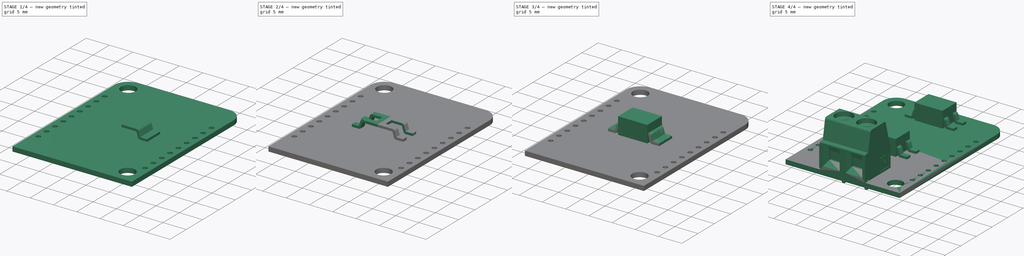
[diagram: build sequence overview — one tinted view per stage of 4, left to right]
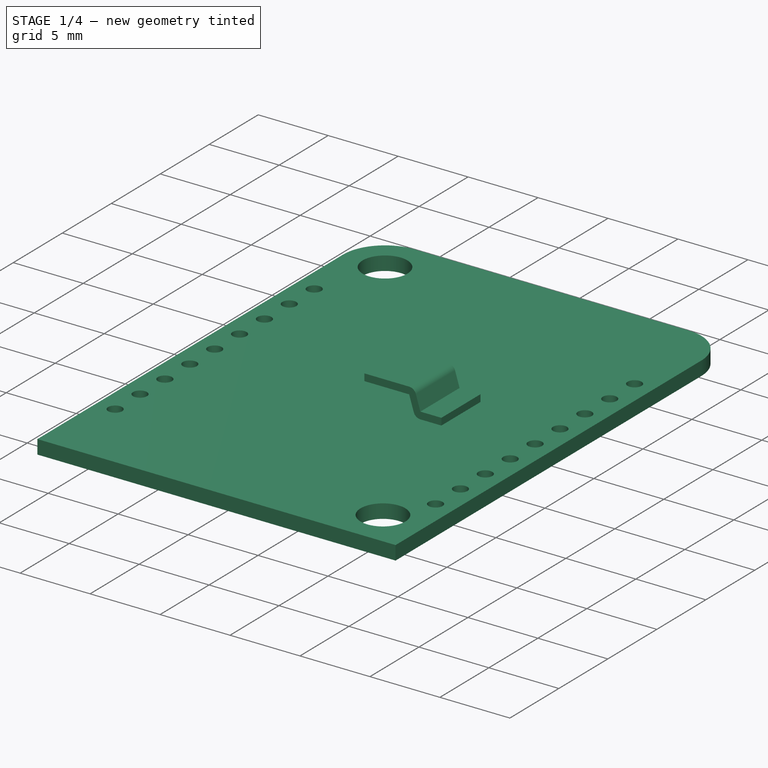
[diagram: stage 1 of 4 — iso view after this stage's code; geometry added in this stage tinted green]
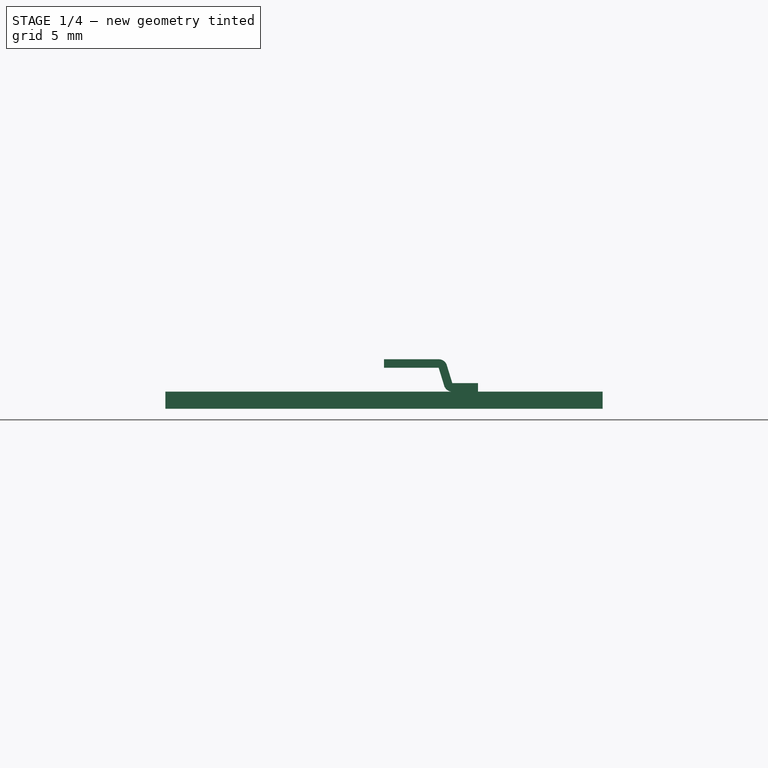
[diagram: stage 1 of 4 — front view after this stage's code; geometry added in this stage tinted green]
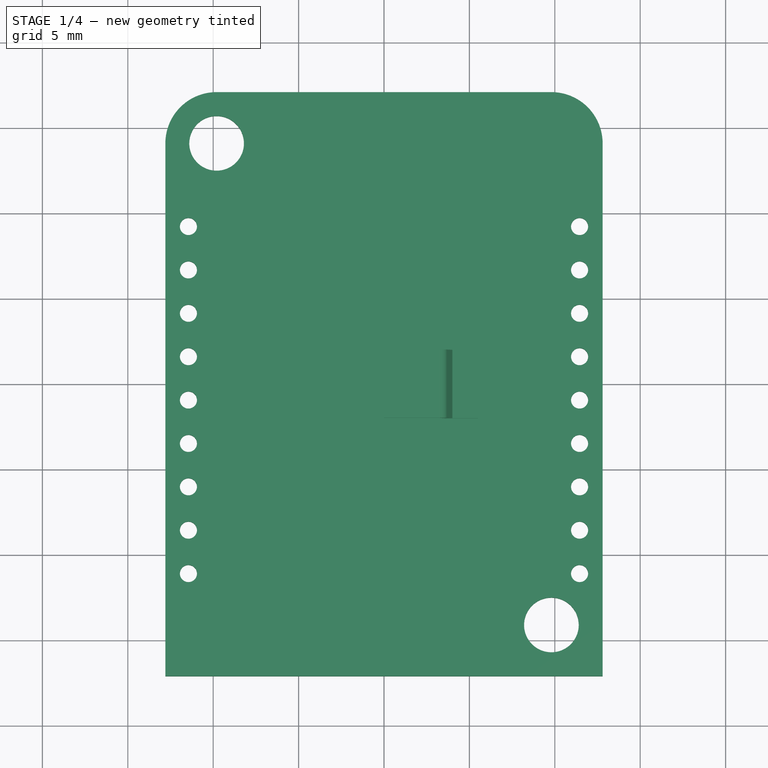
[diagram: stage 1 of 4 — top view after this stage's code; geometry added in this stage tinted green]
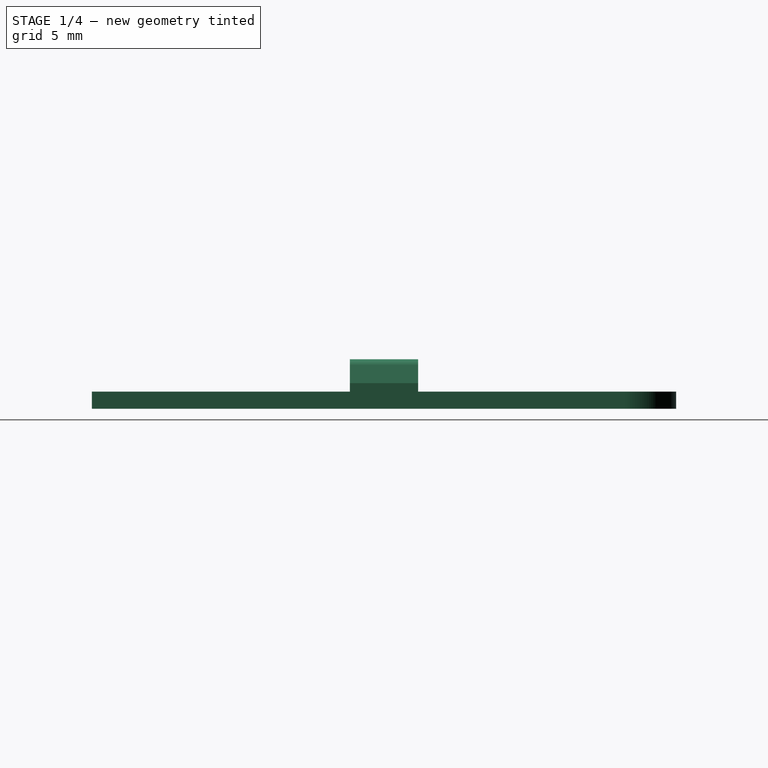
[diagram: stage 1 of 4 — right view after this stage's code; geometry added in this stage tinted green]
FCSTD DOCUMENT  (FreeCAD 0.19R24291 (Git))
Label: OpenThermAdaptor
License: All rights reserved
LicenseURL: http://en.wikipedia.org/wiki/All_rights_reserved
objects: Sketcher::SketchObject×8, PartDesign::Pad×5, PartDesign::Body×5, PartDesign::Mirrored×5, PartDesign::Pocket×3, Part::Feature×1, PartDesign::LinearPattern×1, PartDesign::MultiTransform×1, Part::Compound×1
note: 38 computed .brp shape members not serialized (recipe doc carries the construction recipe); baked Part::Feature solids carry a one-line shape summary decoded from their .brp

FEATURE [Sketcher::SketchObject] Sketch
  FullyConstrained = true
  MapMode = 5
  Support = -> [XY_Plane]
  sketch-geometry (13):
    g0: LineSegment StartX=9.8 StartY=17.1 StartZ=0 EndX=-9.8 EndY=17.1 EndZ=0
    g1: LineSegment StartX=-12.8 StartY=14.1 StartZ=0 EndX=-12.8 EndY=-17.1 EndZ=0
    g2: LineSegment StartX=-12.8 StartY=-17.1 StartZ=0 EndX=12.8 EndY=-17.1 EndZ=0
    g3: LineSegment StartX=12.8 StartY=-17.1 StartZ=0 EndX=12.8 EndY=14.1 EndZ=0
    g4: GeomPoint X=12.8 Y=17.1 Z=0
    g5: ArcOfCircle CenterX=9.8 CenterY=14.1 CenterZ=0 NormalX=0 NormalY=0 NormalZ=1 AngleXU=0 Radius=3 StartAngle=0 EndAngle=1.5708
    g6: ArcOfCircle CenterX=-9.8 CenterY=14.1 CenterZ=0 NormalX=0 NormalY=0 NormalZ=1 AngleXU=0 Radius=3 StartAngle=1.5708 EndAngle=3.14159
    g7: Circle CenterX=-9.8 CenterY=14.1 CenterZ=0 NormalX=0 NormalY=0 NormalZ=1 AngleXU=0 Radius=1.6
    g8: Circle CenterX=9.8 CenterY=-14.1 CenterZ=0 NormalX=0 NormalY=0 NormalZ=1 AngleXU=0 Radius=1.6
    g9: LineSegment StartX=-9.8 StartY=14.1 StartZ=0 EndX=9.8 EndY=14.1 EndZ=0
    g10: LineSegment StartX=9.8 StartY=14.1 StartZ=0 EndX=9.8 EndY=-14.1 EndZ=0
    g11: LineSegment StartX=9.8 StartY=-14.1 StartZ=0 EndX=-9.8 EndY=-14.1 EndZ=0
    g12: LineSegment StartX=-9.8 StartY=-14.1 StartZ=0 EndX=-9.8 EndY=14.1 EndZ=0
  constraints (29):
    c: Vertical(g1)
    c: Symmetric(g1,g3,g-2)
    c: PointOnObject(g4,g0)
    c: Symmetric(g4,g2,g-1)
    c: Symmetric(g2,g2,g-2)
    c: Tangent(g3,g5) = -1.5708
    c: Tangent(g0,g5) = -1.5708
    c: Tangent(g0,g6) = -1.5708
    c: Tangent(g1,g6) = -1.5708
    c: Symmetric(g5,g6,g-2)
    c: Coincident(g1,g2)
    c: DistanceY(g2,g0) = 34.2
    c: Vertical(g3)
    c: DistanceX(g1,g3) = 25.6
    c: Radius(g5) = 3
    c: Coincident(g7,g6)
    c: Diameter(g7) = 3.2
    c: Coincident(g9,g10)
    c: Coincident(g10,g11)
    c: Coincident(g11,g12)
    c: Coincident(g12,g9)
    c: Horizontal(g11)
    c: Vertical(g12)
    c: Coincident(g9,g6)
    c: Coincident(g10,g8)
    c: Symmetric(g6,g9,g-2)
    c: Symmetric(g5,g8,g-1)
    c: Equal(g8,g7)
    c: DistanceY(g1,g-1) = 17.1
FEATURE [PartDesign::Pad] Pad
  Direction = (1,1,1)
  Length = 1
  Length2 = 100
  Profile = -> Sketch
  Reversed = true
  Type = 0
FEATURE [PartDesign::Body] Body007  label="BodyDevice002"
  Group = -> [Sketch012,Pad011]
  Origin = -> Origin008
  Placement = pos=(0,29.75,0) rot=(0,0,1;0rad)
  Tip = -> Pad011
FEATURE [Sketcher::SketchObject] Sketch013
  FullyConstrained = false
  MapMode = 5
  Support = -> [XY_Plane007]
  sketch-geometry (4):
    g0: LineSegment StartX=6 StartY=0.9 StartZ=0 EndX=1 EndY=0.9 EndZ=0
    g1: LineSegment StartX=1 StartY=0.9 StartZ=0 EndX=1 EndY=-0.9 EndZ=0
    g2: LineSegment StartX=1 StartY=-0.9 StartZ=0 EndX=6 EndY=-0.9 EndZ=0
    g3: LineSegment StartX=6 StartY=-0.9 StartZ=0 EndX=6 EndY=0.9 EndZ=0
  constraints (11):
    c: Coincident(g0,g1)
    c: Coincident(g1,g2)
    c: Coincident(g2,g3)
    c: Coincident(g3,g0)
    c: Horizontal(g0)
    c: Horizontal(g2)
    c: Vertical(g1)
    c: Symmetric(g0,g2,g-1)
    c: DistanceY(g3,g3) = 1.8
    c: DistanceX(g0) = 6
    c: DistanceX(g0) = 1
FEATURE [Sketcher::SketchObject] Sketch014
  FullyConstrained = false
  MapMode = 5
  Placement = pos=(0,0,0) rot=(1,0,0;1.5708rad)
  Support = -> [XZ_Plane008]
  sketch-geometry (10):
    g0: LineSegment StartX=0 StartY=1.9 StartZ=0 EndX=3.2 EndY=1.9 EndZ=0
    g1: LineSegment StartX=3.2 StartY=1.4 StartZ=0 EndX=0 EndY=1.4 EndZ=0
    g2: LineSegment StartX=0 StartY=1.4 StartZ=0 EndX=0 EndY=1.9 EndZ=0
    g3: LineSegment StartX=4 StartY=0.5 StartZ=0 EndX=5.5 EndY=0.5 EndZ=0
    g4: LineSegment StartX=5.5 StartY=0.5 StartZ=0 EndX=5.5 EndY=0 EndZ=0
    g5: LineSegment StartX=5.5 StartY=0 StartZ=0 EndX=4 EndY=0 EndZ=0
    g6: LineSegment StartX=3.2 StartY=1.4 StartZ=0 EndX=3.5221 EndY=0.352981 EndZ=0
    g7: LineSegment StartX=4 StartY=0.5 StartZ=0 EndX=3.6779 EndY=1.54702 EndZ=0
    g8: ArcOfCircle CenterX=3.2 CenterY=1.4 CenterZ=0 NormalX=0 NormalY=0 NormalZ=1 AngleXU=0 Radius=0.5 StartAngle=0.29845 EndAngle=1.5708
    g9: ArcOfCircle CenterX=4 CenterY=0.5 CenterZ=0 NormalX=0 NormalY=0 NormalZ=1 AngleXU=0 Radius=0.5 StartAngle=3.44004 EndAngle=4.71239
  constraints (26):
    c: Coincident(g1,g2)
    c: Coincident(g2,g0)
    c: Horizontal(g0)
    c: Horizontal(g1)
    c: Vertical(g2)
    c: PointOnObject(g0,g-2)
    c: Coincident(g3,g4)
    c: Coincident(g4,g5)
    c: Horizontal(g3)
    c: Horizontal(g5)
    c: Vertical(g4)
    c: PointOnObject(g4,g-1)
    c: Tangent(g0,g8) = 1.5708
    c: Tangent(g7,g8) = -1.5708
    c: Tangent(g6,g9) = -1.5708
    c: Tangent(g5,g9) = 1.5708
    c: Coincident(g3,g7)
    c: Coincident(g3,g9)
    c: Coincident(g1,g6)
    c: Coincident(g1,g8)
    c: Parallel(g6,g7)
    c: DistanceX(g3) = 5.5
    c: DistanceY(g4,g4) = 0.5
    c: DistanceX(g1) = 3.2
    c: DistanceY(g1) = 1.4
    c: DistanceX(g1,g3) = 0.8
FEATURE [PartDesign::Pad] Pad010
  Direction = (1,1,1)
  Length = 4
  Length2 = 100
  Midplane = true
  Placement = pos=(0,0,0) rot=(1,0,0;1.5708rad)
  Profile = -> Sketch014
  Type = 0
FEATURE [PartDesign::Body] Body008  label="PinsDevice002"
  Group = -> [Sketch014,Pad010,Mirrored002,Sketch013,Pocket001,Mirrored003]
  Origin = -> Origin007
  Placement = pos=(0,29.75,0) rot=(0,0,1;0rad)
  Tip = -> Mirrored003
FEATURE [Sketcher::SketchObject] Sketch015
  FullyConstrained = false
  MapMode = 5
  Support = -> [XY_Plane]
  sketch-geometry (1):
    g0: Circle CenterX=11.45 CenterY=-11.09 CenterZ=0 NormalX=0 NormalY=0 NormalZ=1 AngleXU=0 Radius=0.5
  constraints (3):
    c: DistanceX(g-1,g0) = 11.45
    c: DistanceY(g0,g-1) = 11.09
    c: Diameter(g0) = 1
FEATURE [PartDesign::Pocket] Pocket002
  BaseFeature = -> Pad
  Length = 5
  Length2 = 100
  Midplane = true
  Profile = -> Sketch015
  Type = 1
FEATURE [PartDesign::LinearPattern] LinearPattern
  Direction = -> Y_Axis
  Length = 20.32
  Occurrences = 9
FEATURE [PartDesign::Mirrored] Mirrored004
  MirrorPlane = -> YZ_Plane
FEATURE [PartDesign::MultiTransform] MultiTransform
  BaseFeature = -> Pocket002
  Originals = -> [Pocket002]
  Transformations = -> [LinearPattern,Mirrored004]
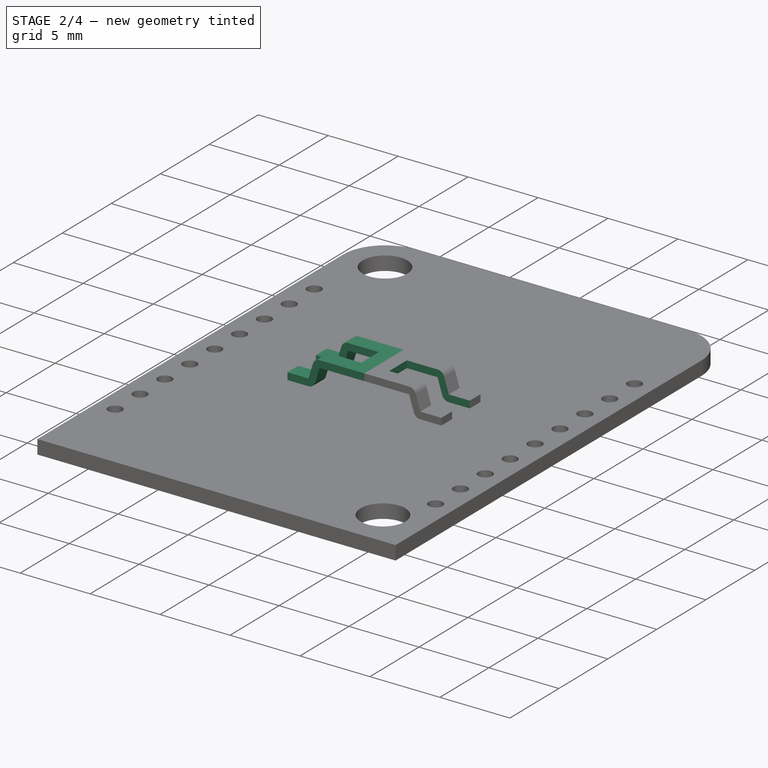
[diagram: stage 2 of 4 — iso view after this stage's code; geometry added in this stage tinted green]
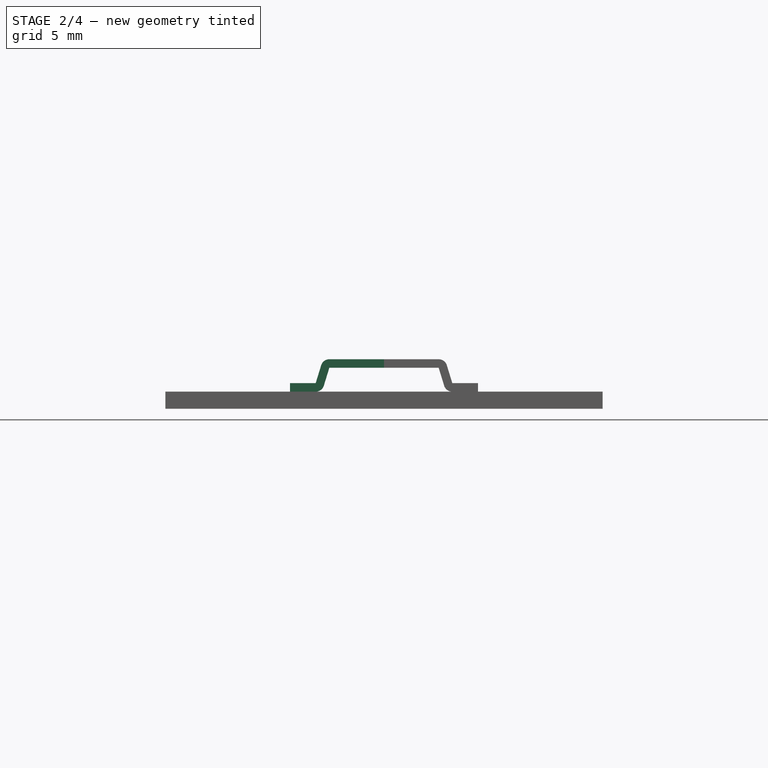
[diagram: stage 2 of 4 — front view after this stage's code; geometry added in this stage tinted green]
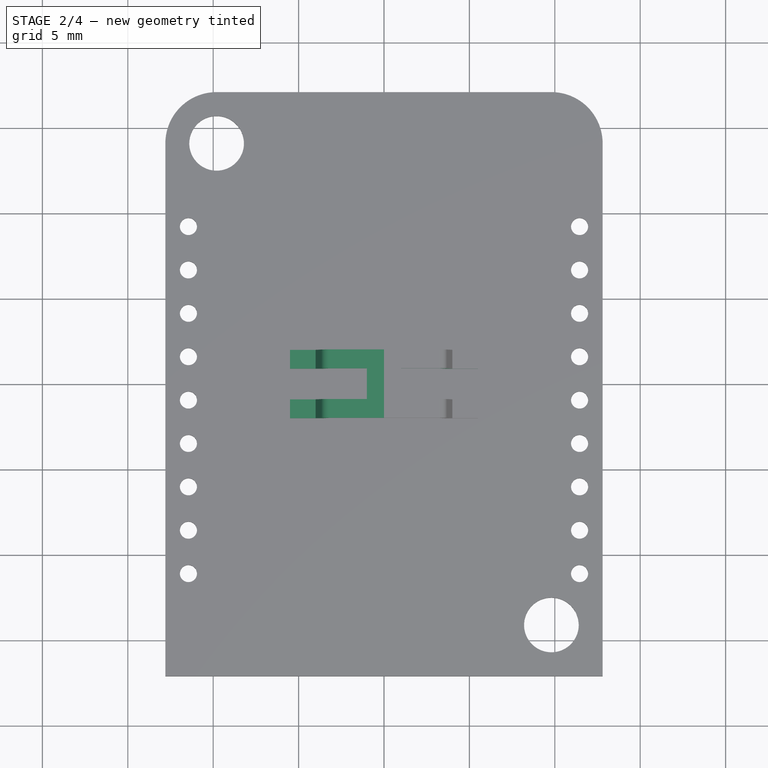
[diagram: stage 2 of 4 — top view after this stage's code; geometry added in this stage tinted green]
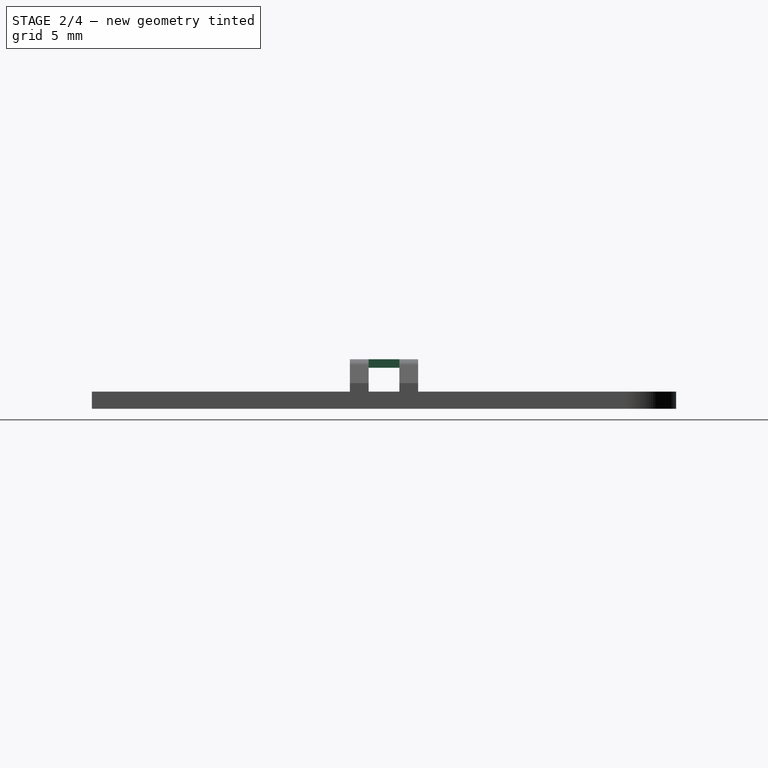
[diagram: stage 2 of 4 — right view after this stage's code; geometry added in this stage tinted green]
FEATURE [PartDesign::Mirrored] Mirrored002
  BaseFeature = -> Pad010
  MirrorPlane = -> YZ_Plane008
  Originals = -> [Pad010]
  Placement = pos=(0,0,0) rot=(1,0,0;1.5708rad)
FEATURE [PartDesign::Pocket] Pocket001
  BaseFeature = -> Mirrored002
  Length = 5
  Length2 = 100
  Midplane = true
  Placement = pos=(0,0,0) rot=(1,0,0;1.5708rad)
  Profile = -> Sketch013
  Type = 1
FEATURE [PartDesign::Mirrored] Mirrored003
  BaseFeature = -> Pocket001
  MirrorPlane = -> YZ_Plane008
  Originals = -> [Pocket001]
  Placement = pos=(0,0,0) rot=(1,0,0;1.5708rad)
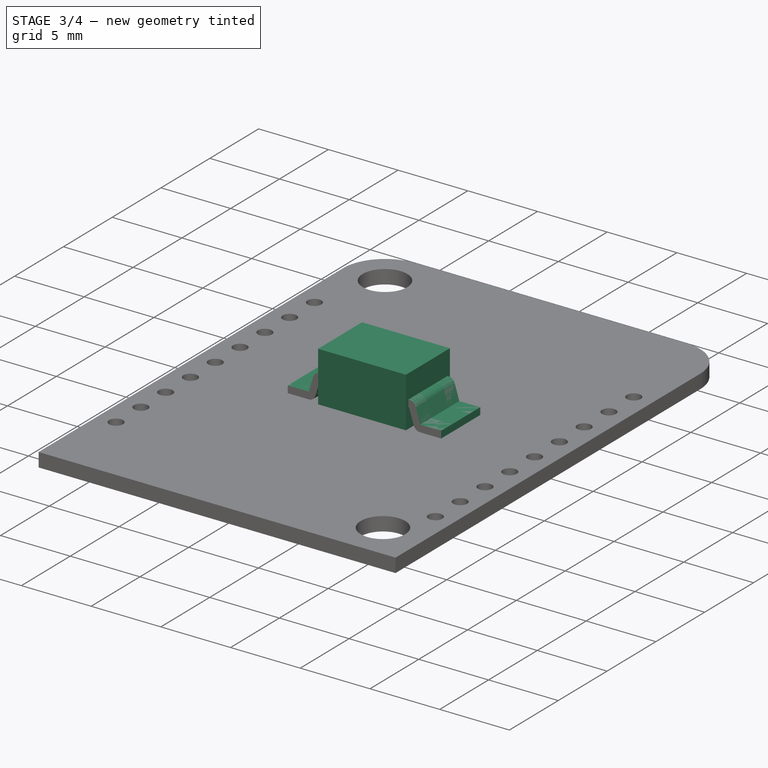
[diagram: stage 3 of 4 — iso view after this stage's code; geometry added in this stage tinted green]
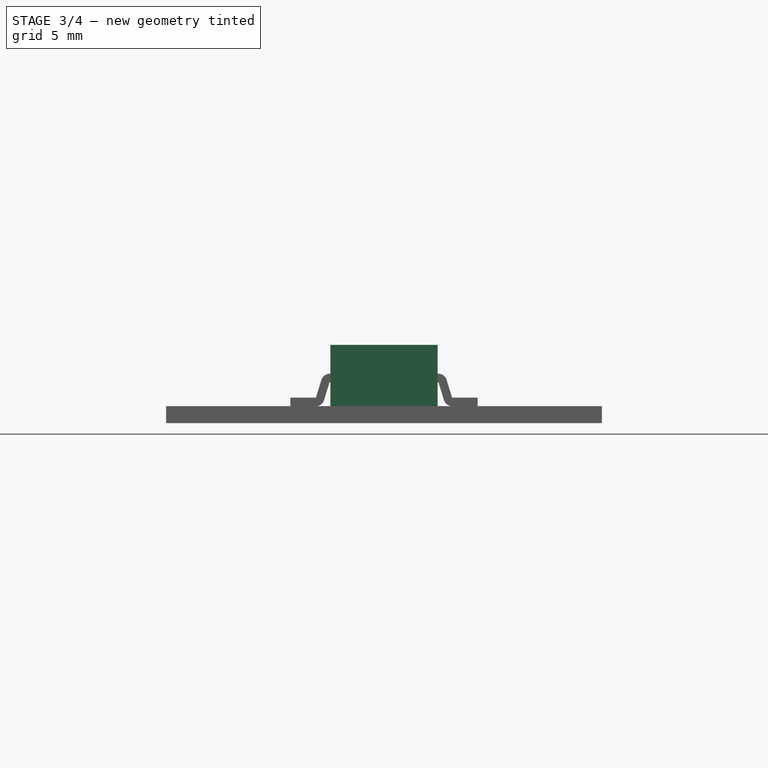
[diagram: stage 3 of 4 — front view after this stage's code; geometry added in this stage tinted green]
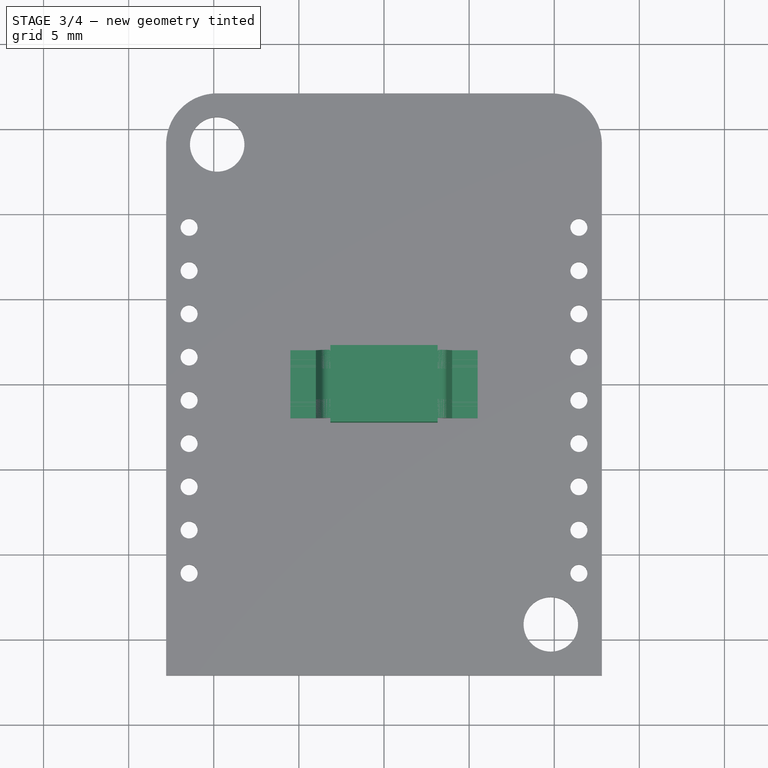
[diagram: stage 3 of 4 — top view after this stage's code; geometry added in this stage tinted green]
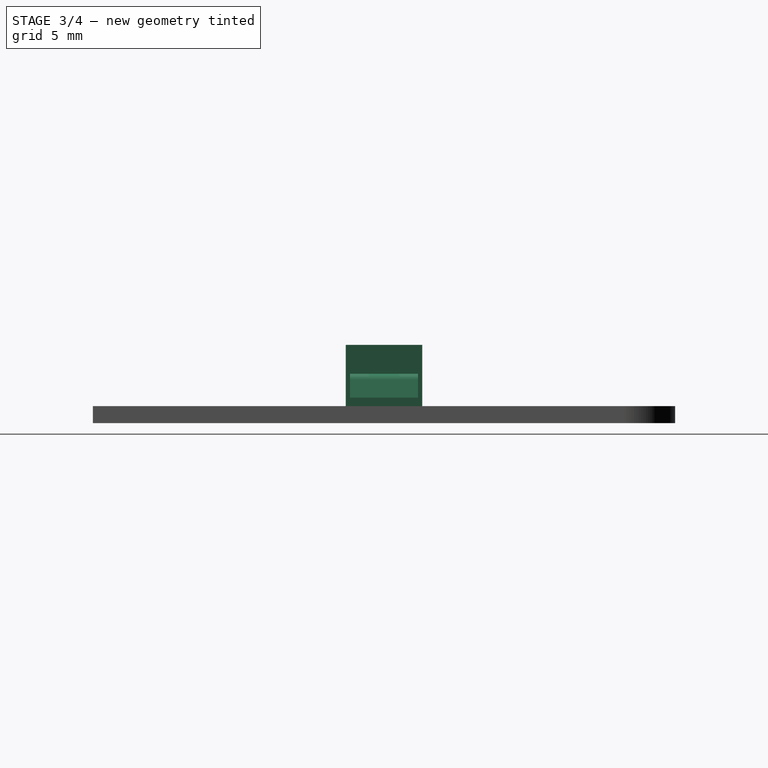
[diagram: stage 3 of 4 — right view after this stage's code; geometry added in this stage tinted green]
FEATURE [PartDesign::Body] Body001  label="BodyDevice1"
  Group = -> [Sketch001,Pad001]
  Origin = -> Origin001
  Placement = pos=(0,14.75,0) rot=(0,0,1;0rad)
  Tip = -> Pad001
FEATURE [Sketcher::SketchObject] Sketch010
  FullyConstrained = false
  MapMode = 5
  Placement = pos=(0,0,0) rot=(1,0,0;1.5708rad)
  Support = -> [XZ_Plane002]
  sketch-geometry (10):
    g0: LineSegment StartX=0 StartY=1.9 StartZ=0 EndX=3.2 EndY=1.9 EndZ=0
    g1: LineSegment StartX=3.2 StartY=1.4 StartZ=0 EndX=0 EndY=1.4 EndZ=0
    g2: LineSegment StartX=0 StartY=1.4 StartZ=0 EndX=0 EndY=1.9 EndZ=0
    g3: LineSegment StartX=4 StartY=0.5 StartZ=0 EndX=5.5 EndY=0.5 EndZ=0
    g4: LineSegment StartX=5.5 StartY=0.5 StartZ=0 EndX=5.5 EndY=0 EndZ=0
    g5: LineSegment StartX=5.5 StartY=0 StartZ=0 EndX=4 EndY=0 EndZ=0
    g6: LineSegment StartX=3.2 StartY=1.4 StartZ=0 EndX=3.5221 EndY=0.352981 EndZ=0
    g7: LineSegment StartX=4 StartY=0.5 StartZ=0 EndX=3.6779 EndY=1.54702 EndZ=0
    g8: ArcOfCircle CenterX=3.2 CenterY=1.4 CenterZ=0 NormalX=0 NormalY=0 NormalZ=1 AngleXU=0 Radius=0.5 StartAngle=0.29845 EndAngle=1.5708
    g9: ArcOfCircle CenterX=4 CenterY=0.5 CenterZ=0 NormalX=0 NormalY=0 NormalZ=1 AngleXU=0 Radius=0.5 StartAngle=3.44004 EndAngle=4.71239
  constraints (26):
    c: Coincident(g1,g2)
    c: Coincident(g2,g0)
    c: Horizontal(g0)
    c: Horizontal(g1)
    c: Vertical(g2)
    c: PointOnObject(g0,g-2)
    c: Coincident(g3,g4)
    c: Coincident(g4,g5)
    c: Horizontal(g3)
    c: Horizontal(g5)
    c: Vertical(g4)
    c: PointOnObject(g4,g-1)
    c: Tangent(g0,g8) = 1.5708
    c: Tangent(g7,g8) = -1.5708
    c: Tangent(g6,g9) = -1.5708
    c: Tangent(g5,g9) = 1.5708
    c: Coincident(g3,g7)
    c: Coincident(g3,g9)
    c: Coincident(g1,g6)
    c: Coincident(g1,g8)
    c: Parallel(g6,g7)
    c: DistanceX(g3) = 5.5
    c: DistanceY(g4,g4) = 0.5
    c: DistanceX(g1) = 3.2
    c: DistanceY(g1) = 1.4
    c: DistanceX(g1,g3) = 0.8
FEATURE [PartDesign::Pad] Pad009
  Direction = (1,1,1)
  Length = 4
  Length2 = 100
  Midplane = true
  Placement = pos=(0,0,0) rot=(1,0,0;1.5708rad)
  Profile = -> Sketch010
  Type = 0
FEATURE [PartDesign::Mirrored] Mirrored
  BaseFeature = -> Pad009
  MirrorPlane = -> YZ_Plane002
  Originals = -> [Pad009]
  Placement = pos=(0,0,0) rot=(1,0,0;1.5708rad)
FEATURE [PartDesign::Body] Body002  label="PinsDevice1"
  Group = -> [Sketch010,Pad009,Mirrored,Sketch011,Pocket,Mirrored001]
  Origin = -> Origin002
  Placement = pos=(0,14.75,0) rot=(0,0,1;0rad)
  Tip = -> Mirrored001
FEATURE [Sketcher::SketchObject] Sketch012
  FullyConstrained = false
  MapMode = 5
  Placement = pos=(0,0,0) rot=(0.57735,0.57735,0.57735;2.0944rad)
  Support = -> [YZ_Plane007]
  sketch-geometry (4):
    g0: LineSegment StartX=-2.25 StartY=3.6 StartZ=0 EndX=2.25 EndY=3.6 EndZ=0
    g1: LineSegment StartX=2.25 StartY=3.6 StartZ=0 EndX=2.25 EndY=0 EndZ=0
    g2: LineSegment StartX=2.25 StartY=0 StartZ=0 EndX=-2.25 EndY=0 EndZ=0
    g3: LineSegment StartX=-2.25 StartY=0 StartZ=0 EndX=-2.25 EndY=3.6 EndZ=0
  constraints (11):
    c: Coincident(g0,g1)
    c: Coincident(g1,g2)
    c: Coincident(g2,g3)
    c: Coincident(g3,g0)
    c: Horizontal(g2)
    c: Vertical(g1)
    c: Vertical(g3)
    c: DistanceX(g0,g0) = 4.5
    c: DistanceY(g1,g1) = 3.6
    c: PointOnObject(g1,g-1)
    c: Symmetric(g0,g0,g-2)
FEATURE [PartDesign::Pad] Pad011
  Direction = (1,1,1)
  Length = 6.3
  Length2 = 100
  Midplane = true
  Placement = pos=(0,0,0) rot=(0.57735,0.57735,0.57735;2.0944rad)
  Profile = -> Sketch012
  Type = 0
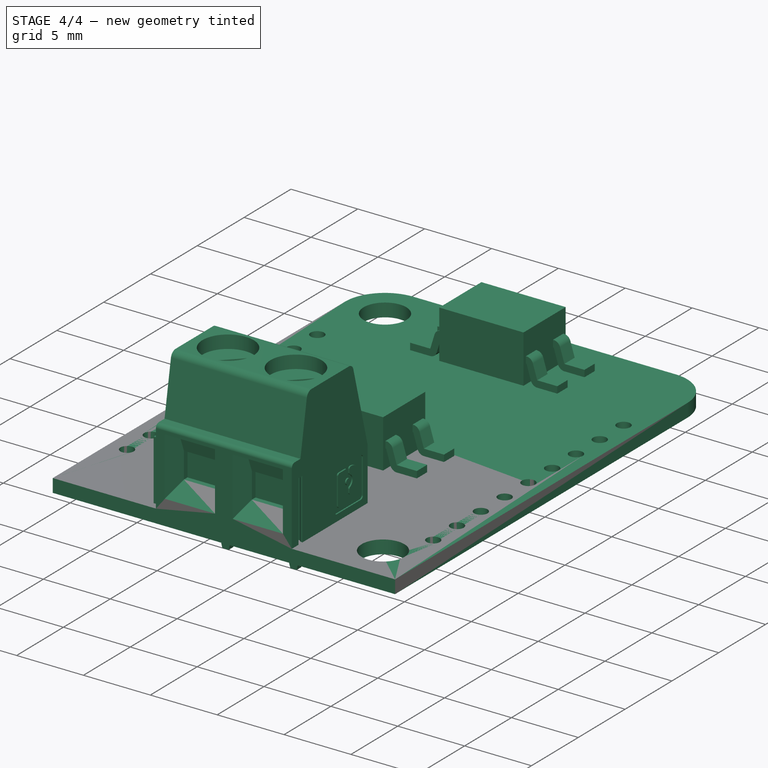
[diagram: stage 4 of 4 — iso view after this stage's code; geometry added in this stage tinted green]
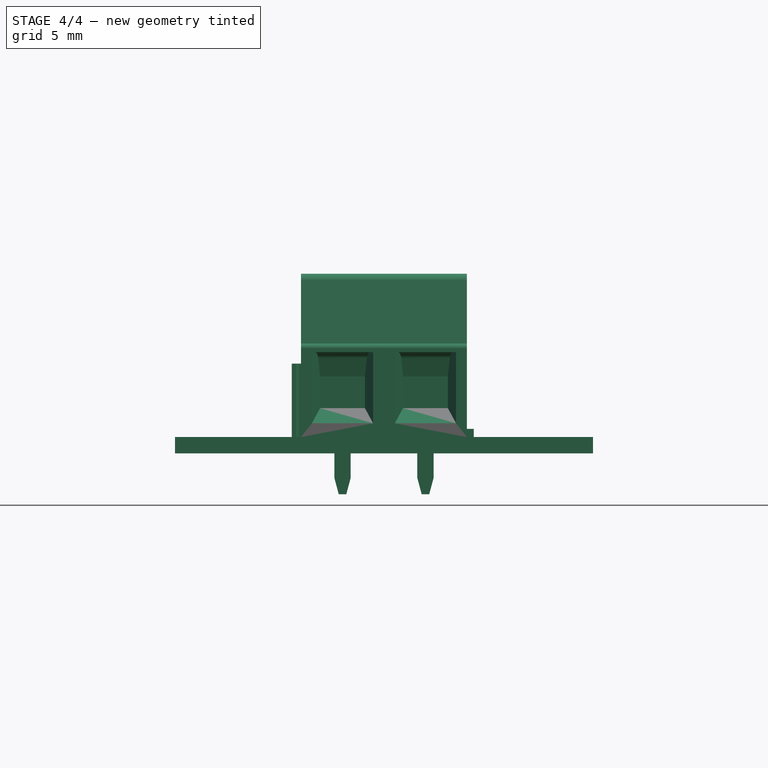
[diagram: stage 4 of 4 — front view after this stage's code; geometry added in this stage tinted green]
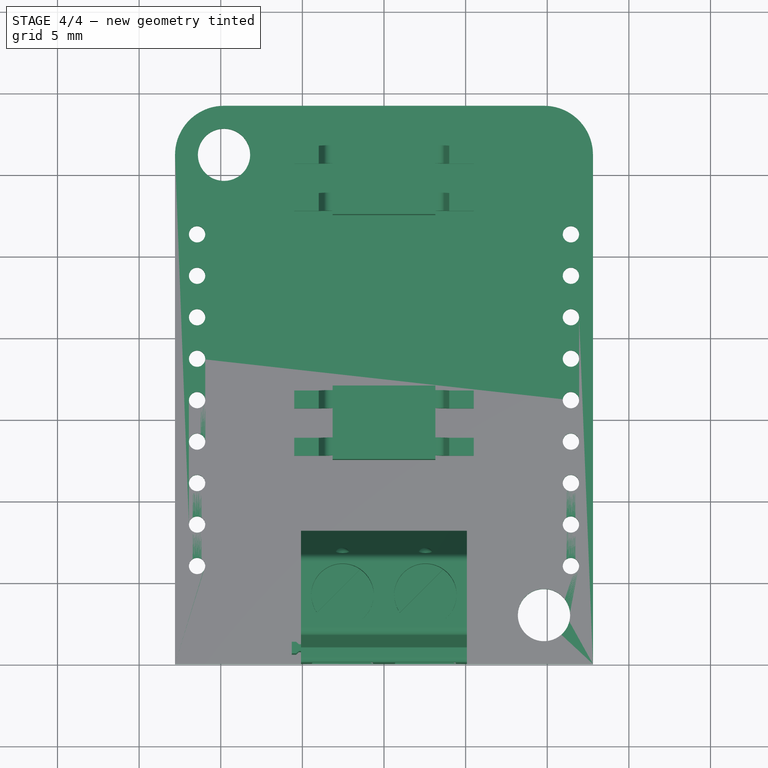
[diagram: stage 4 of 4 — top view after this stage's code; geometry added in this stage tinted green]
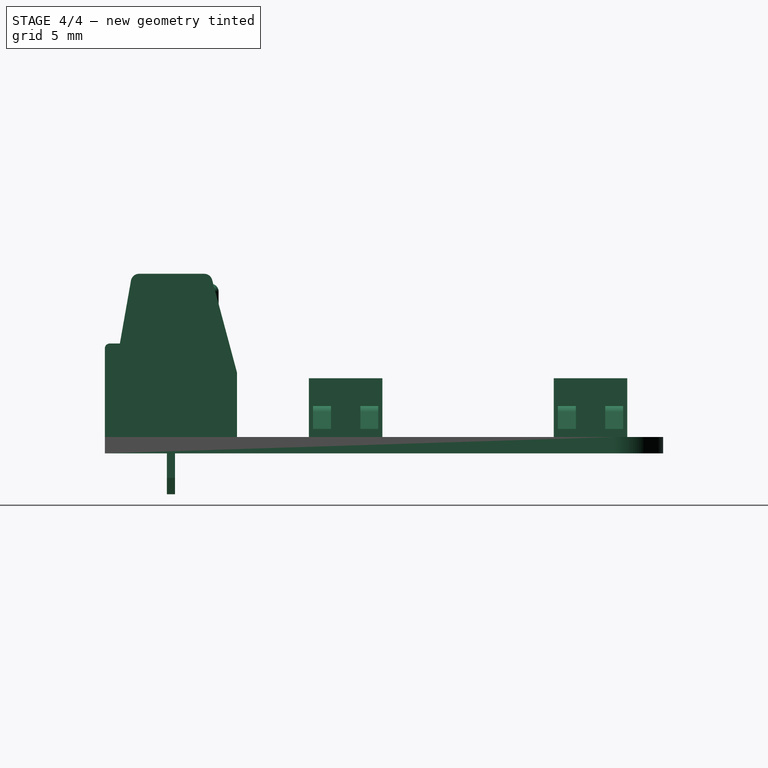
[diagram: stage 4 of 4 — right view after this stage's code; geometry added in this stage tinted green]
FEATURE [Part::Feature] Part__Feature002  label="Phonix2Pins"
  Placement = pos=(2.53914,39.9011,-15.51) rot=(0.57735,0.57735,0.57735;2.0944rad)
  shape: bbox 10.73 x 8.1 x 13.5 mm, 169 faces (baked)
FEATURE [Sketcher::SketchObject] Sketch001
  FullyConstrained = false
  MapMode = 5
  Placement = pos=(0,0,0) rot=(0.57735,0.57735,0.57735;2.0944rad)
  Support = -> [YZ_Plane001]
  sketch-geometry (4):
    g0: LineSegment StartX=-2.25 StartY=3.6 StartZ=0 EndX=2.25 EndY=3.6 EndZ=0
    g1: LineSegment StartX=2.25 StartY=3.6 StartZ=0 EndX=2.25 EndY=0 EndZ=0
    g2: LineSegment StartX=2.25 StartY=0 StartZ=0 EndX=-2.25 EndY=0 EndZ=0
    g3: LineSegment StartX=-2.25 StartY=0 StartZ=0 EndX=-2.25 EndY=3.6 EndZ=0
  constraints (11):
    c: Coincident(g0,g1)
    c: Coincident(g1,g2)
    c: Coincident(g2,g3)
    c: Coincident(g3,g0)
    c: Horizontal(g2)
    c: Vertical(g1)
    c: Vertical(g3)
    c: DistanceX(g0,g0) = 4.5
    c: DistanceY(g1,g1) = 3.6
    c: PointOnObject(g1,g-1)
    c: Symmetric(g0,g0,g-2)
FEATURE [PartDesign::Pad] Pad001
  Direction = (1,1,1)
  Length = 6.3
  Length2 = 100
  Midplane = true
  Placement = pos=(0,0,0) rot=(0.57735,0.57735,0.57735;2.0944rad)
  Profile = -> Sketch001
  Type = 0
FEATURE [Sketcher::SketchObject] Sketch011
  FullyConstrained = false
  MapMode = 5
  Support = -> [XY_Plane002]
  sketch-geometry (4):
    g0: LineSegment StartX=6 StartY=0.9 StartZ=0 EndX=1 EndY=0.9 EndZ=0
    g1: LineSegment StartX=1 StartY=0.9 StartZ=0 EndX=1 EndY=-0.9 EndZ=0
    g2: LineSegment StartX=1 StartY=-0.9 StartZ=0 EndX=6 EndY=-0.9 EndZ=0
    g3: LineSegment StartX=6 StartY=-0.9 StartZ=0 EndX=6 EndY=0.9 EndZ=0
  constraints (11):
    c: Coincident(g0,g1)
    c: Coincident(g1,g2)
    c: Coincident(g2,g3)
    c: Coincident(g3,g0)
    c: Horizontal(g0)
    c: Horizontal(g2)
    c: Vertical(g1)
    c: Symmetric(g0,g2,g-1)
    c: DistanceY(g3,g3) = 1.8
    c: DistanceX(g0) = 6
    c: DistanceX(g0) = 1
FEATURE [PartDesign::Pocket] Pocket
  BaseFeature = -> Mirrored
  Length = 5
  Length2 = 100
  Midplane = true
  Placement = pos=(0,0,0) rot=(1,0,0;1.5708rad)
  Profile = -> Sketch011
  Type = 1
FEATURE [PartDesign::Mirrored] Mirrored001
  BaseFeature = -> Pocket
  MirrorPlane = -> YZ_Plane002
  Originals = -> [Pocket]
  Placement = pos=(0,0,0) rot=(1,0,0;1.5708rad)
FEATURE [PartDesign::Body] Body  label="PCB"
  Group = -> [Sketch,Pad,Sketch015,Pocket002,MultiTransform,LinearPattern,Mirrored004]
  Origin = -> Origin
  Placement = pos=(0,17.1,0) rot=(0,0,1;0rad)
  Tip = -> MultiTransform
FEATURE [Part::Compound] Compound  label="OpenThermAdaptor"
  Links = -> [Body,Part__Feature002,Body001,Body002,Body007,Body008]
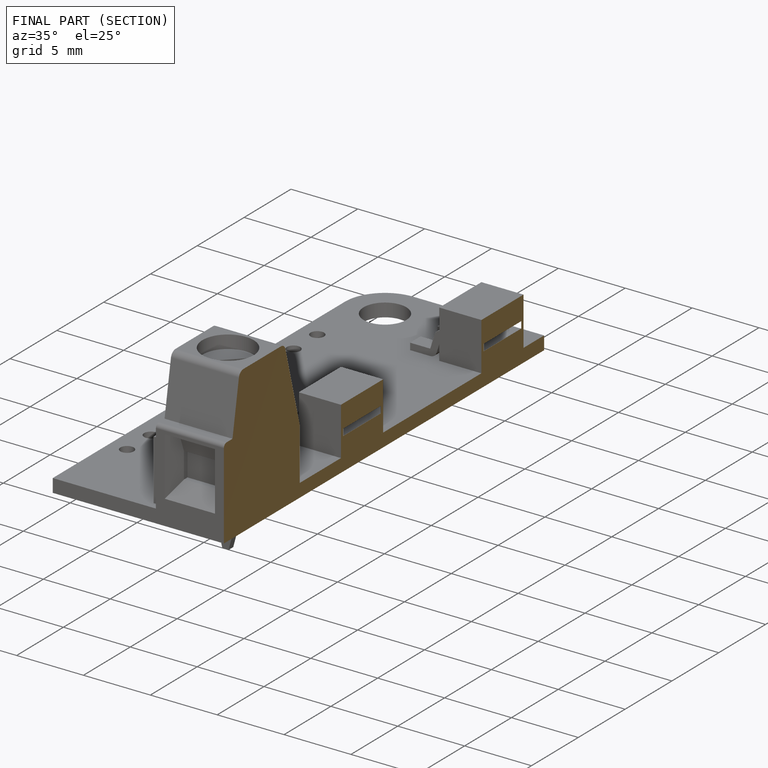
[diagram: finished part — half-section view (interior)]
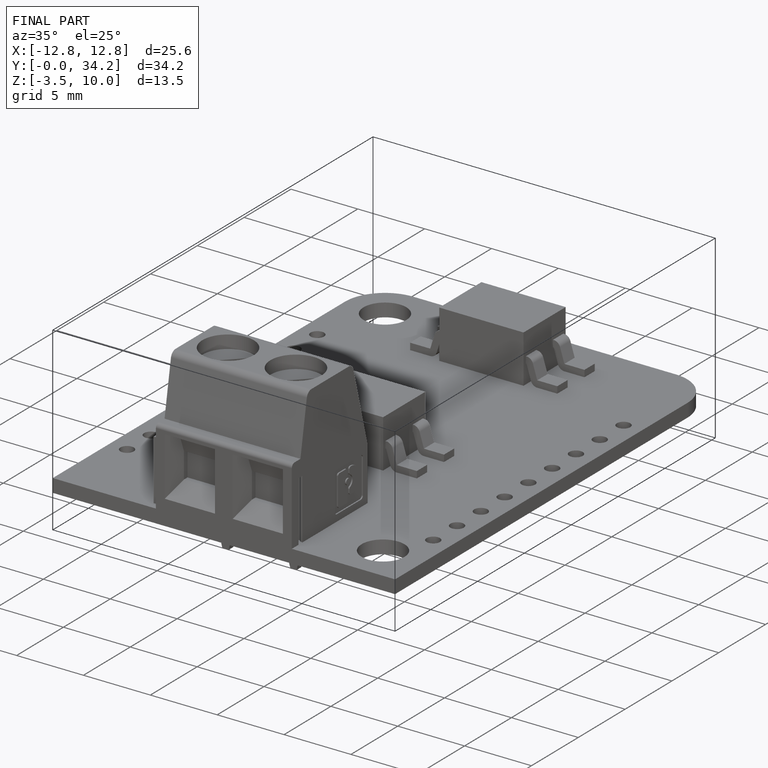
[diagram: finished part — iso view with bounding-box wireframe]
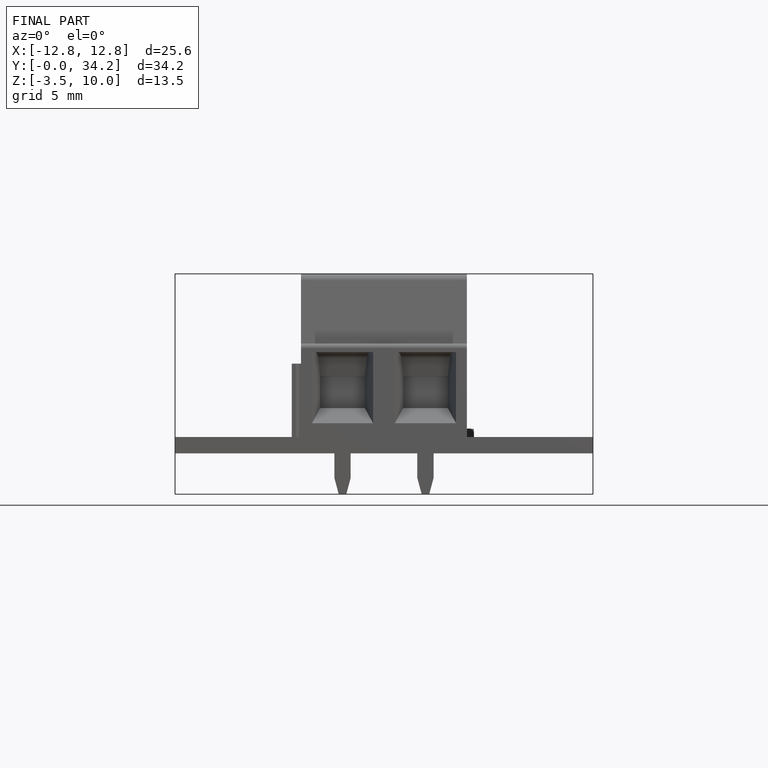
[diagram: finished part — front view with bounding-box wireframe]
